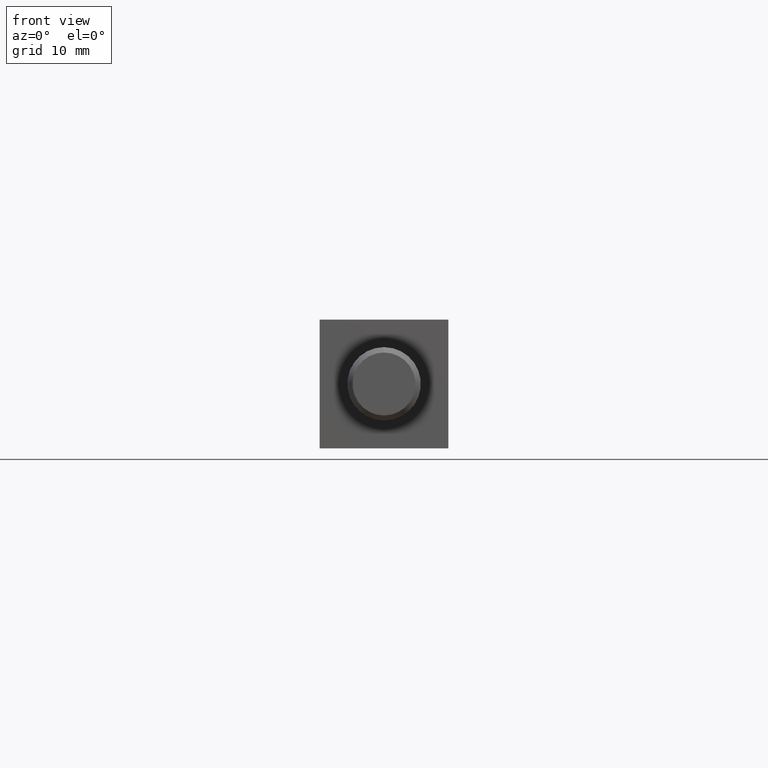
[diagram: clean part render]
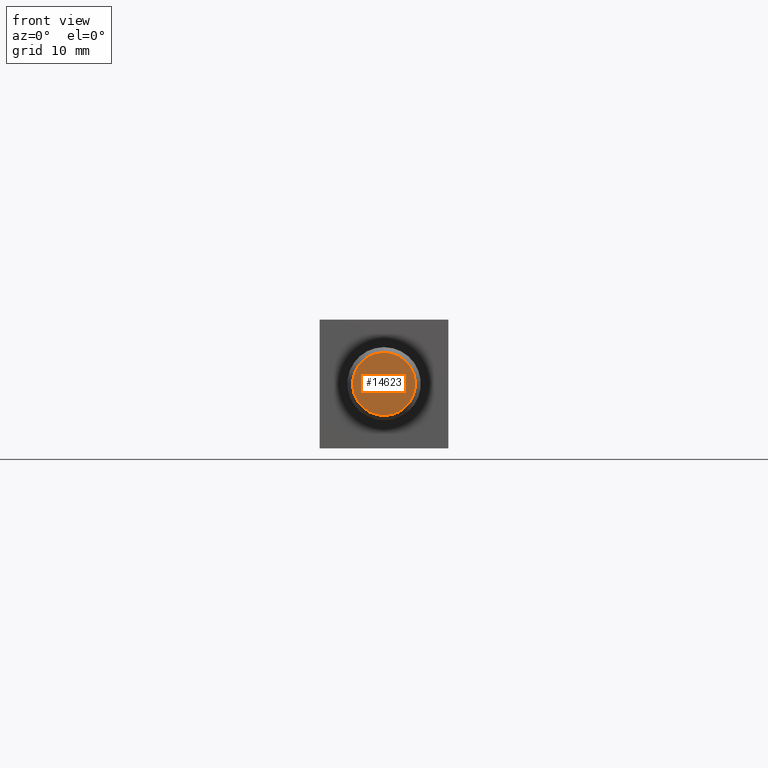
[diagram: same view with one face highlighted and labeled with its STEP entity id]
A machine part, front view. The second image highlights one B-rep face of the part: STEP entity #14623.
In plain terms, the highlighted planar face has unit normal (0, -1, 0).
Its self-contained STEP definition (entity closure, byte-faithful):
#256 = CARTESIAN_POINT ( 'NONE',  ( 0.0000000000000000000, -8.999999999999998200, 0.0000000000000000000 ) ) ;
#410 = EDGE_LOOP ( 'NONE', ( #2705, #10485 ) ) ;
#832 = AXIS2_PLACEMENT_3D ( 'NONE', #2210, #11472, #1264 ) ;
#990 = VERTEX_POINT ( 'NONE', #5898 ) ;
#1264 = DIRECTION ( 'NONE',  ( 0.0000000000000000000, 0.0000000000000000000, -1.000000000000000000 ) ) ;
#2210 = CARTESIAN_POINT ( 'NONE',  ( 0.0000000000000000000, -8.999999999999998200, 0.0000000000000000000 ) ) ;
#2306 = AXIS2_PLACEMENT_3D ( 'NONE', #256, #13792, #10379 ) ;
#2705 = ORIENTED_EDGE ( 'NONE', *, *, #7192, .T. ) ;
#4605 = FACE_OUTER_BOUND ( 'NONE', #410, .T. ) ;
#4746 = AXIS2_PLACEMENT_3D ( 'NONE', #11307, #12481, #10214 ) ;
#5492 = VERTEX_POINT ( 'NONE', #14472 ) ;
#5898 = CARTESIAN_POINT ( 'NONE',  ( 4.545062117014440500E-016, -8.999999999999998200, -3.422649730810370300 ) ) ;
#6840 = PLANE ( 'NONE',  #2306 ) ;
#7192 = EDGE_CURVE ( 'NONE', #5492, #990, #10070, .T. ) ;
#7504 = CIRCLE ( 'NONE', #4746, 3.422649730810370300 ) ;
#10070 = CIRCLE ( 'NONE', #832, 3.422649730810370300 ) ;
#10214 = DIRECTION ( 'NONE',  ( 0.0000000000000000000, 0.0000000000000000000, -1.000000000000000000 ) ) ;
#10379 = DIRECTION ( 'NONE',  ( 0.0000000000000000000, -0.0000000000000000000, -1.000000000000000000 ) ) ;
#10485 = ORIENTED_EDGE ( 'NONE', *, *, #11454, .T. ) ;
#11307 = CARTESIAN_POINT ( 'NONE',  ( 0.0000000000000000000, -8.999999999999998200, 0.0000000000000000000 ) ) ;
#11454 = EDGE_CURVE ( 'NONE', #990, #5492, #7504, .T. ) ;
#11472 = DIRECTION ( 'NONE',  ( 0.0000000000000000000, -1.000000000000000000, 0.0000000000000000000 ) ) ;
#12481 = DIRECTION ( 'NONE',  ( 0.0000000000000000000, -1.000000000000000000, 0.0000000000000000000 ) ) ;
#13792 = DIRECTION ( 'NONE',  ( 0.0000000000000000000, -1.000000000000000000, 0.0000000000000000000 ) ) ;
#14472 = CARTESIAN_POINT ( 'NONE',  ( 0.0000000000000000000, -8.999999999999998200, 3.422649730810370300 ) ) ;
#14623 = ADVANCED_FACE ( 'NONE', ( #4605 ), #6840, .T. ) ;